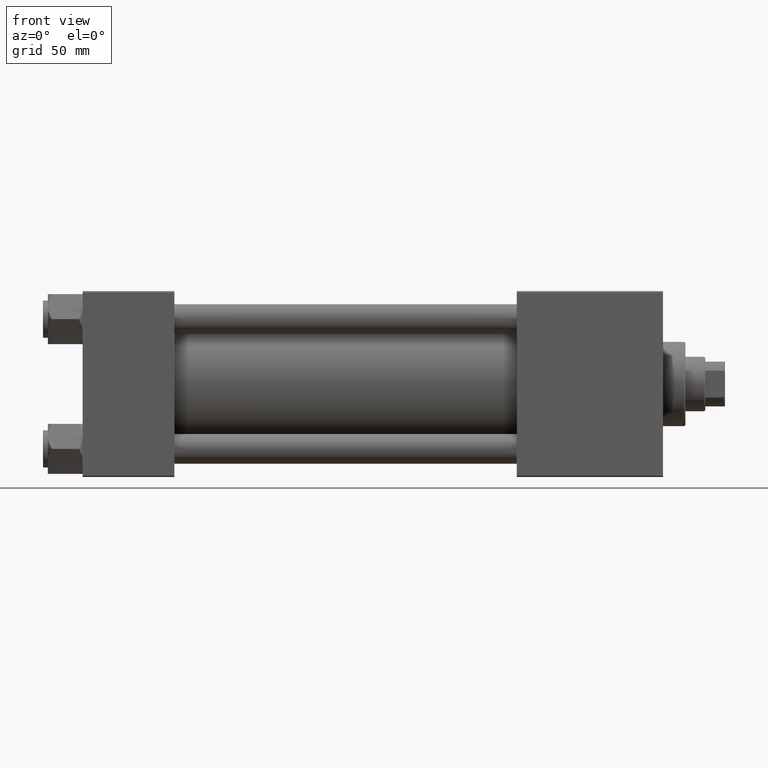
[diagram: clean part render]
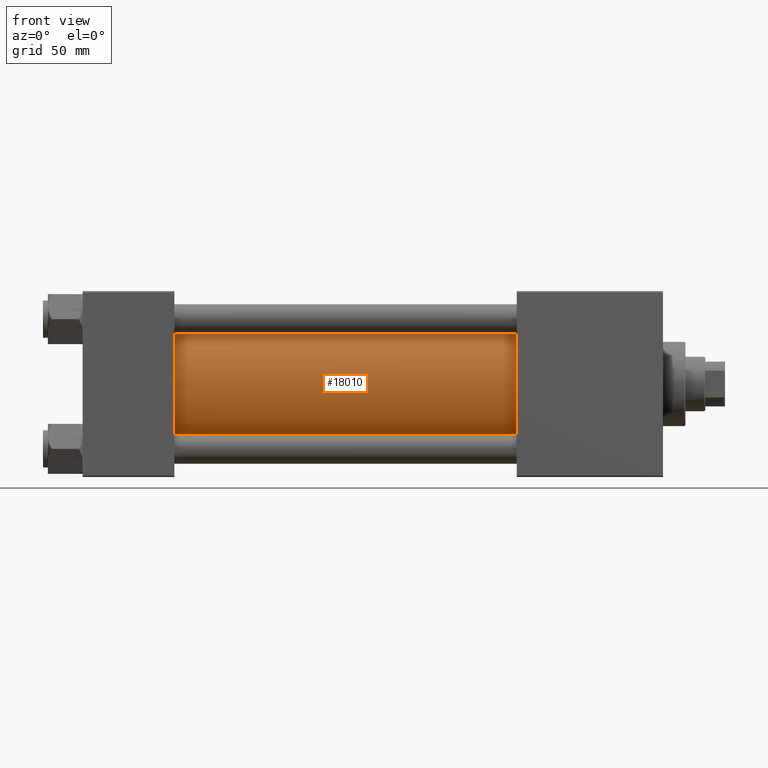
[diagram: same view with one face highlighted and labeled with its STEP entity id]
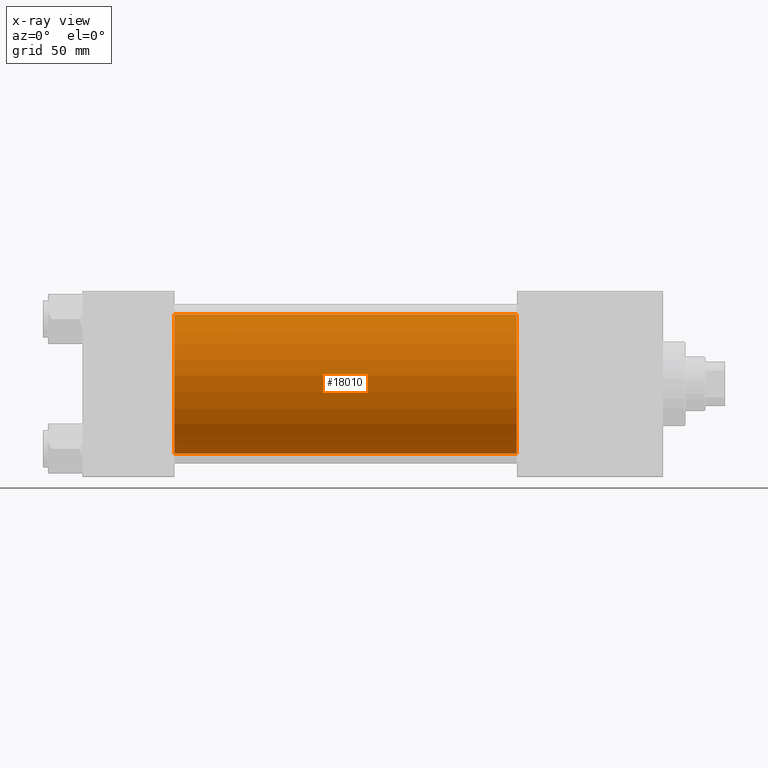
[diagram: x-ray of the same camera — body ghosted, the highlighted face saturated]
A machine part, front view. The second image highlights one B-rep face of the part: STEP entity #18010.
The next image is the same camera in x-ray: the body ghosted, the highlighted face saturated — about 0% of this face is hidden behind the body in this view.
In plain terms, the highlighted cylindrical surface (partial cylindrical patch) has radius 28 mm, axis along (-1, -0, -0).
Its self-contained STEP definition (entity closure, byte-faithful):
#2170 = DIRECTION ( 'NONE',  ( 0.000000000000000000, 0.000000000000000000, 1.000000000000000000 ) ) ;
#3205 = VERTEX_POINT ( 'NONE', #47775 ) ;
#3253 = LINE ( 'NONE', #48960, #47539 ) ;
#9577 = VECTOR ( 'NONE', #29345, 1000.000000000000000 ) ;
#13229 = DIRECTION ( 'NONE',  ( 0.000000000000000000, 0.000000000000000000, -1.000000000000000000 ) ) ;
#13249 = EDGE_CURVE ( 'NONE', #17246, #3205, #47659, .T. ) ;
#13584 = CARTESIAN_POINT ( 'NONE',  ( 175.0000000000000284, -2.602085213965210642E-15, 0.000000000000000000 ) ) ;
#14508 = EDGE_CURVE ( 'NONE', #17246, #40327, #16923, .T. ) ;
#15323 = CARTESIAN_POINT ( 'NONE',  ( 175.0000000000000284, -2.602085213965210642E-15, 28.00000000000000000 ) ) ;
#16697 = CIRCLE ( 'NONE', #23175, 28.00000000000000000 ) ;
#16923 = LINE ( 'NONE', #48400, #9577 ) ;
#17246 = VERTEX_POINT ( 'NONE', #15323 ) ;
#18010 = ADVANCED_FACE ( 'NONE', ( #21214 ), #48373, .T. ) ;
#20596 = DIRECTION ( 'NONE',  ( 1.000000000000000000, 0.000000000000000000, 0.000000000000000000 ) ) ;
#21214 = FACE_OUTER_BOUND ( 'NONE', #24231, .T. ) ;
#22645 = AXIS2_PLACEMENT_3D ( 'NONE', #13584, #36941, #2170 ) ;
#22753 = ORIENTED_EDGE ( 'NONE', *, *, #14508, .T. ) ;
#23175 = AXIS2_PLACEMENT_3D ( 'NONE', #28335, #36716, #31893 ) ;
#24231 = EDGE_LOOP ( 'NONE', ( #28308, #48487, #22753, #43489 ) ) ;
#28308 = ORIENTED_EDGE ( 'NONE', *, *, #36969, .F. ) ;
#28335 = CARTESIAN_POINT ( 'NONE',  ( 37.00000000000000711, -2.602085213965210642E-15, 0.000000000000000000 ) ) ;
#29345 = DIRECTION ( 'NONE',  ( -1.000000000000000000, -0.000000000000000000, -0.000000000000000000 ) ) ;
#31605 = VERTEX_POINT ( 'NONE', #45909 ) ;
#31893 = DIRECTION ( 'NONE',  ( 0.000000000000000000, 0.000000000000000000, 1.000000000000000000 ) ) ;
#32004 = CARTESIAN_POINT ( 'NONE',  ( 175.0000000000000284, -2.602085213965210642E-15, 0.000000000000000000 ) ) ;
#35400 = CARTESIAN_POINT ( 'NONE',  ( 37.00000000000000711, -2.602085213965210642E-15, 28.00000000000000000 ) ) ;
#36716 = DIRECTION ( 'NONE',  ( 1.000000000000000000, -0.000000000000000000, 0.000000000000000000 ) ) ;
#36941 = DIRECTION ( 'NONE',  ( -1.000000000000000000, -0.000000000000000000, -0.000000000000000000 ) ) ;
#36969 = EDGE_CURVE ( 'NONE', #3205, #31605, #3253, .T. ) ;
#37769 = DIRECTION ( 'NONE',  ( -1.000000000000000000, -0.000000000000000000, -0.000000000000000000 ) ) ;
#40226 = EDGE_CURVE ( 'NONE', #40327, #31605, #16697, .T. ) ;
#40327 = VERTEX_POINT ( 'NONE', #35400 ) ;
#43489 = ORIENTED_EDGE ( 'NONE', *, *, #40226, .T. ) ;
#44398 = AXIS2_PLACEMENT_3D ( 'NONE', #32004, #20596, #13229 ) ;
#45909 = CARTESIAN_POINT ( 'NONE',  ( 37.00000000000000711, 8.269258236473784371E-16, -28.00000000000000000 ) ) ;
#47539 = VECTOR ( 'NONE', #37769, 1000.000000000000000 ) ;
#47659 = CIRCLE ( 'NONE', #44398, 28.00000000000000000 ) ;
#47775 = CARTESIAN_POINT ( 'NONE',  ( 175.0000000000000284, 8.269258236473784371E-16, -28.00000000000000000 ) ) ;
#48373 = CYLINDRICAL_SURFACE ( 'NONE', #22645, 28.00000000000000000 ) ;
#48400 = CARTESIAN_POINT ( 'NONE',  ( 175.0000000000000284, -2.602085213965210642E-15, 28.00000000000000000 ) ) ;
#48487 = ORIENTED_EDGE ( 'NONE', *, *, #13249, .F. ) ;
#48960 = CARTESIAN_POINT ( 'NONE',  ( 175.0000000000000284, 8.269258236473784371E-16, -28.00000000000000000 ) ) ;